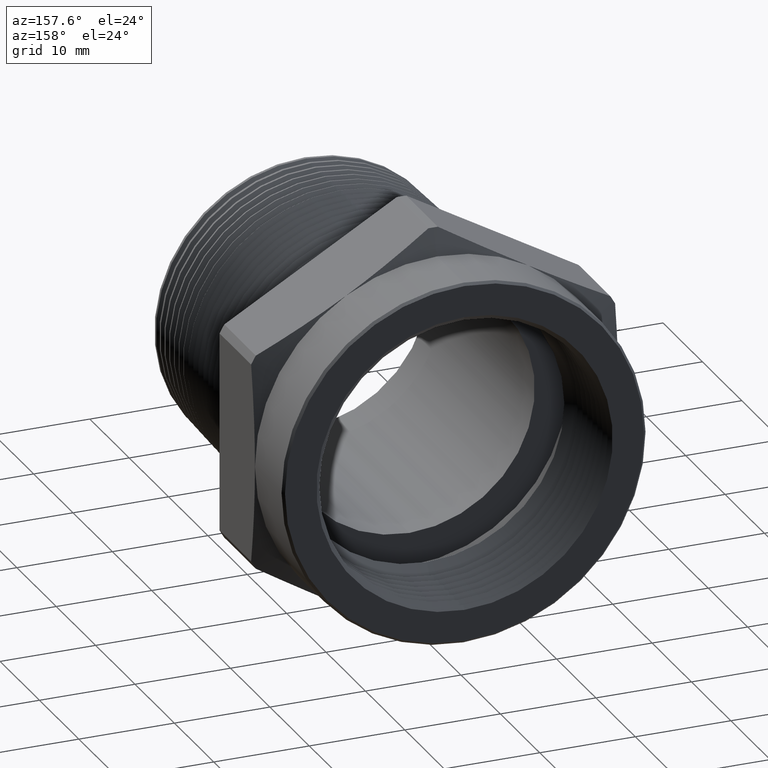
[diagram: clean part render]
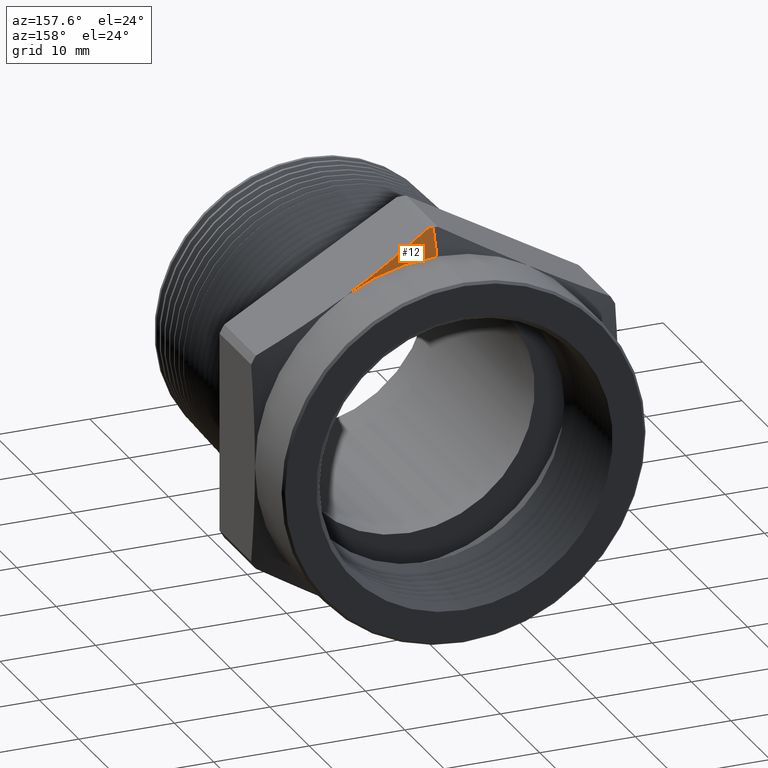
[diagram: same view with one face highlighted and labeled with its STEP entity id]
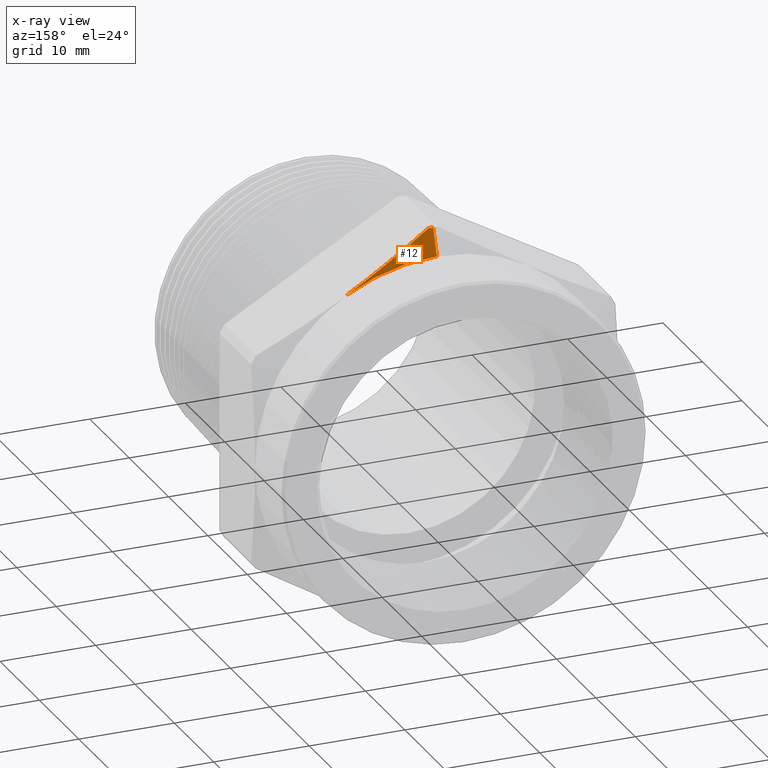
[diagram: x-ray of the same camera — body ghosted, the highlighted face saturated]
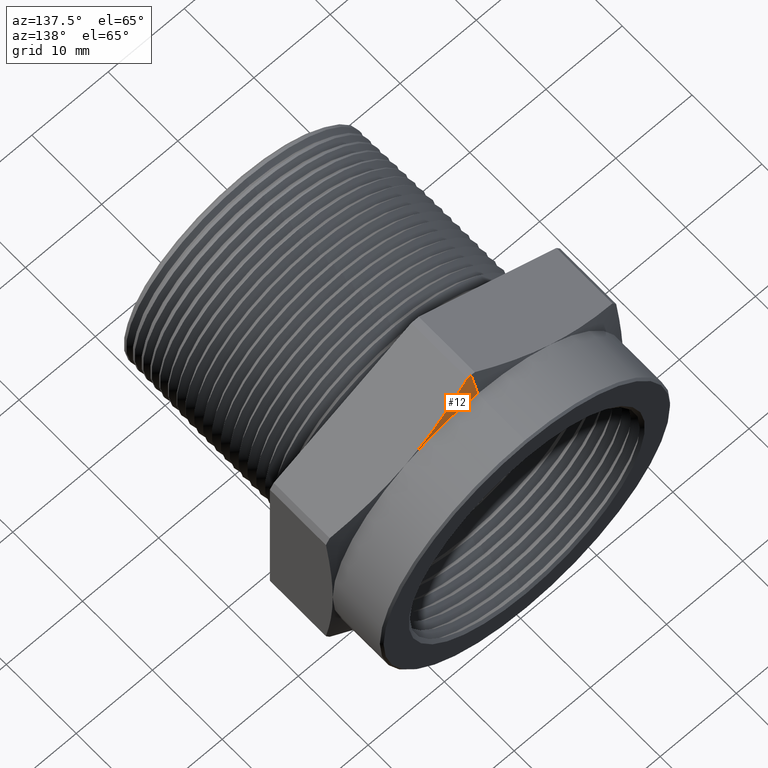
[diagram: same view with one face highlighted and labeled with its STEP entity id]
A machine part, auxiliary view. The second image highlights one B-rep face of the part: STEP entity #12.
The next image is the same camera in x-ray: the body ghosted, the highlighted face saturated — about 0% of this face is hidden behind the body in this view.
A second angle (auxiliary view) of the same face is appended — the face is thin or edge-on in the first view.
In plain terms, the highlighted conical surface has half-angle 70 deg.
Its self-contained STEP definition (entity closure, byte-faithful):
#7 = EDGE_CURVE ( 'NONE', #9, #10, #1420, .T. ) ;
#8 = ORIENTED_EDGE ( 'NONE', *, *, #7, .T. ) ;
#9 = VERTEX_POINT ( 'NONE', #1480 ) ;
#10 = VERTEX_POINT ( 'NONE', #1479 ) ;
#11 = EDGE_LOOP ( 'NONE', ( #8, #48, #54, #2752 ) ) ;
#12 = ADVANCED_FACE ( 'NONE', ( #1478 ), #1476, .T. ) ;
#48 = ORIENTED_EDGE ( 'NONE', *, *, #51, .T. ) ;
#49 = EDGE_CURVE ( 'NONE', #1749, #50, #1539, .T. ) ;
#50 = VERTEX_POINT ( 'NONE', #1534 ) ;
#51 = EDGE_CURVE ( 'NONE', #10, #50, #1533, .T. ) ;
#54 = ORIENTED_EDGE ( 'NONE', *, *, #49, .F. ) ;
#477 = DIRECTION ( 'NONE',  ( -0.0000000000000000000, -1.000000000000000000, -0.0000000000000000000 ) ) ;
#1418 = CARTESIAN_POINT ( 'NONE',  ( 0.0000000000000000000, 1.334199999999999800, 0.0000000000000000000 ) ) ;
#1419 = AXIS2_PLACEMENT_3D ( 'NONE', #1418, #477, #1481 ) ;
#1420 = CIRCLE ( 'NONE', #1419, 0.7500000000000001100 ) ;
#1473 = DIRECTION ( 'NONE',  ( 0.0000000000000000000, 0.0000000000000000000, 1.000000000000000000 ) ) ;
#1474 = DIRECTION ( 'NONE',  ( 0.0000000000000000000, -1.000000000000000000, 0.0000000000000000000 ) ) ;
#1475 = AXIS2_PLACEMENT_3D ( 'NONE', #1477, #1474, #1473 ) ;
#1476 = CONICAL_SURFACE ( 'NONE', #1475, 0.7500000000000001100, 1.221730476396033500 ) ;
#1477 = CARTESIAN_POINT ( 'NONE',  ( 0.0000000000000000000, 1.334199999999999800, 0.0000000000000000000 ) ) ;
#1478 = FACE_OUTER_BOUND ( 'NONE', #11, .T. ) ;
#1479 = CARTESIAN_POINT ( 'NONE',  ( 9.184850993605150900E-017, 1.334199999999999800, 0.7500000000000001100 ) ) ;
#1480 = CARTESIAN_POINT ( 'NONE',  ( 0.3750000000000000600, 1.334199999999999800, 0.6495190528383291100 ) ) ;
#1481 = DIRECTION ( 'NONE',  ( 0.0000000000000000000, 0.0000000000000000000, -1.000000000000000000 ) ) ;
#1530 = DIRECTION ( 'NONE',  ( 0.0000000000000000000, -0.3420201433256661000, 0.9396926207859094300 ) ) ;
#1531 = VECTOR ( 'NONE', #1530, 39.37007874015748900 ) ;
#1532 = CARTESIAN_POINT ( 'NONE',  ( 0.0000000000000000000, 1.334199999999999800, 0.7500000000000001100 ) ) ;
#1533 = LINE ( 'NONE', #1532, #1531 ) ;
#1534 = CARTESIAN_POINT ( 'NONE',  ( 0.0000000000000000000, 1.295983125402049100, 0.8549999999999997600 ) ) ;
#1535 = DIRECTION ( 'NONE',  ( 0.0000000000000000000, 0.0000000000000000000, -1.000000000000000000 ) ) ;
#1536 = DIRECTION ( 'NONE',  ( 0.0000000000000000000, -1.000000000000000000, 0.0000000000000000000 ) ) ;
#1537 = CARTESIAN_POINT ( 'NONE',  ( 0.0000000000000000000, 1.295983125402049100, 0.0000000000000000000 ) ) ;
#1538 = AXIS2_PLACEMENT_3D ( 'NONE', #1537, #1536, #1535 ) ;
#1539 = CIRCLE ( 'NONE', #1538, 0.8549999999999999800 ) ;
#1749 = VERTEX_POINT ( 'NONE', #4013 ) ;
#2752 = ORIENTED_EDGE ( 'NONE', *, *, #2758, .F. ) ;
#2758 = EDGE_CURVE ( 'NONE', #9, #1749, #4082, .T. ) ;
#4013 = CARTESIAN_POINT ( 'NONE',  ( 0.01948101316525990100, 1.295983125402049100, 0.8547780355893892500 ) ) ;
#4073 = CARTESIAN_POINT ( 'NONE',  ( 0.01948101316525990100, 1.295983125402049100, 0.8547780355893892500 ) ) ;
#4074 = CARTESIAN_POINT ( 'NONE',  ( 0.07873417763771659000, 1.307939866869829200, 0.8205682051308790200 ) ) ;
#4075 = CARTESIAN_POINT ( 'NONE',  ( 0.1379873421101732700, 1.317587956122084000, 0.7863583746723689100 ) ) ;
#4076 = CARTESIAN_POINT ( 'NONE',  ( 0.2564936710550865800, 1.330735167903123900, 0.7179387137553491200 ) ) ;
#4077 = CARTESIAN_POINT ( 'NONE',  ( 0.3157468355275431200, 1.334199999999999800, 0.6837288832968390100 ) ) ;
#4078 = CARTESIAN_POINT ( 'NONE',  ( 0.3750000000000000600, 1.334199999999999800, 0.6495190528383291100 ) ) ;
#4082 = B_SPLINE_CURVE_WITH_KNOTS ( 'NONE', 3,
 ( #4078, #4077, #4076, #4075, #4074, #4073 ),
 .UNSPECIFIED., .F., .F.,
 ( 4, 2, 4 ),
 ( 0.01042738726386153000, 0.01564096542573845800, 0.02085454358761538700 ),
 .UNSPECIFIED. ) ;